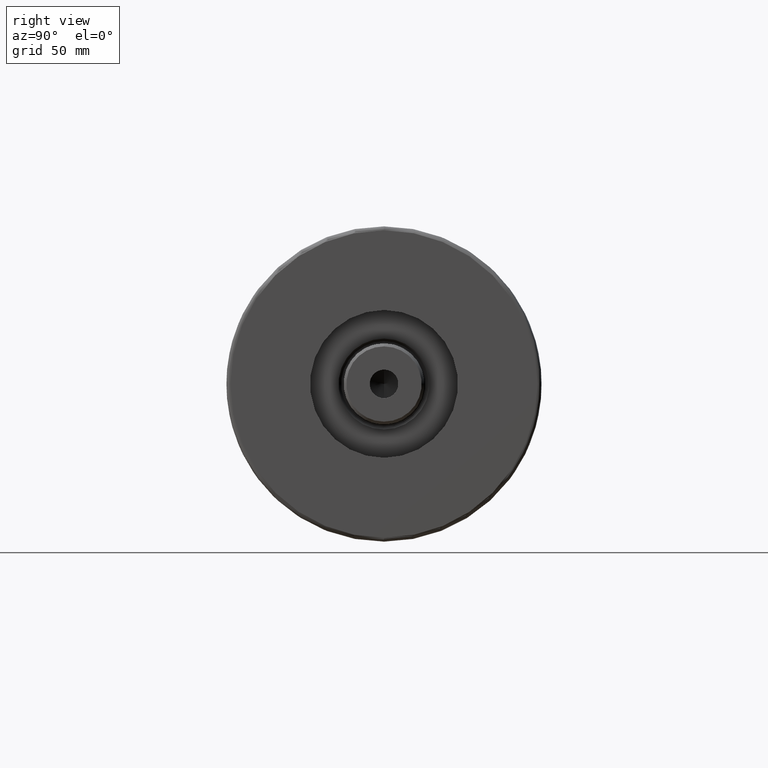
[diagram: clean part render]
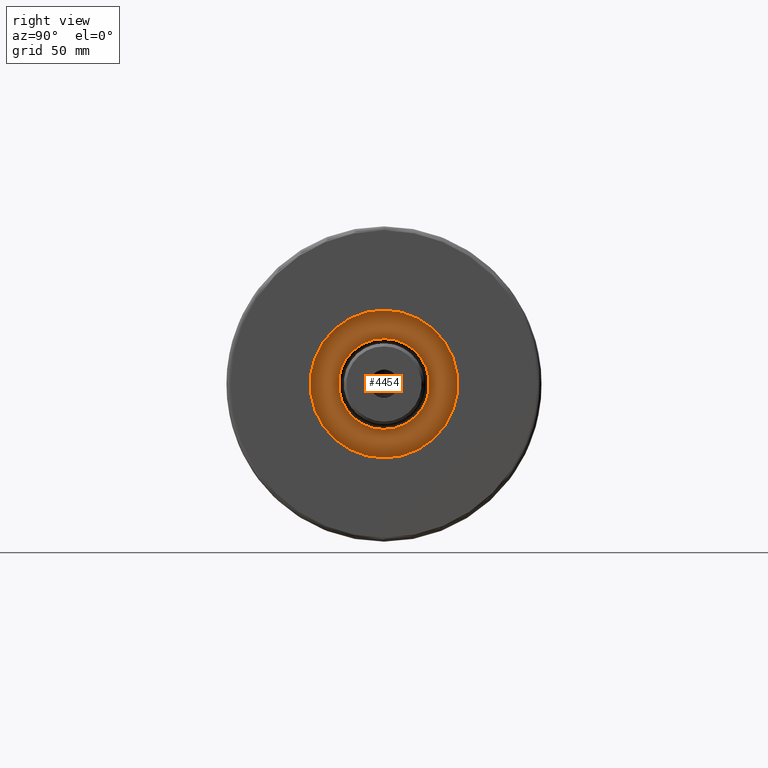
[diagram: same view with one face highlighted and labeled with its STEP entity id]
A machine part, right view. The second image highlights one B-rep face of the part: STEP entity #4454.
In plain terms, the highlighted planar face has unit normal (1, 0, -0).
Its self-contained STEP definition (entity closure, byte-faithful):
#40 = EDGE_CURVE ( 'NONE', #542, #2072, #178, .T. ) ;
#140 = CARTESIAN_POINT ( 'NONE',  ( 0.000000000000000000, 0.000000000000000000, 59.89999999999999147 ) ) ;
#178 = CIRCLE ( 'NONE', #894, 37.50000000000000711 ) ;
#274 = DIRECTION ( 'NONE',  ( -0.000000000000000000, -0.000000000000000000, -1.000000000000000000 ) ) ;
#310 = FACE_BOUND ( 'NONE', #425, .T. ) ;
#425 = EDGE_LOOP ( 'NONE', ( #1106, #554 ) ) ;
#542 = VERTEX_POINT ( 'NONE', #1857 ) ;
#554 = ORIENTED_EDGE ( 'NONE', *, *, #968, .T. ) ;
#862 = ORIENTED_EDGE ( 'NONE', *, *, #40, .T. ) ;
#894 = AXIS2_PLACEMENT_3D ( 'NONE', #140, #4322, #1696 ) ;
#968 = EDGE_CURVE ( 'NONE', #2165, #4409, #3863, .T. ) ;
#975 = EDGE_CURVE ( 'NONE', #2072, #542, #4566, .T. ) ;
#1026 = DIRECTION ( 'NONE',  ( 0.000000000000000000, 0.000000000000000000, 1.000000000000000000 ) ) ;
#1056 = DIRECTION ( 'NONE',  ( -0.000000000000000000, -0.000000000000000000, -1.000000000000000000 ) ) ;
#1106 = ORIENTED_EDGE ( 'NONE', *, *, #1904, .T. ) ;
#1116 = CARTESIAN_POINT ( 'NONE',  ( 0.000000000000000000, 0.000000000000000000, 59.89999999999999147 ) ) ;
#1227 = CARTESIAN_POINT ( 'NONE',  ( -23.05000000000002913, 2.822810872034651791E-15, 59.89999999999999147 ) ) ;
#1301 = AXIS2_PLACEMENT_3D ( 'NONE', #1116, #1026, #1468 ) ;
#1358 = CARTESIAN_POINT ( 'NONE',  ( 0.000000000000000000, 0.000000000000000000, 59.89999999999999147 ) ) ;
#1382 = DIRECTION ( 'NONE',  ( 1.000000000000000000, 0.000000000000000000, 0.000000000000000000 ) ) ;
#1407 = CARTESIAN_POINT ( 'NONE',  ( 23.05000000000002913, 0.000000000000000000, 59.89999999999999147 ) ) ;
#1468 = DIRECTION ( 'NONE',  ( 1.000000000000000000, 0.000000000000000000, 0.000000000000000000 ) ) ;
#1504 = DIRECTION ( 'NONE',  ( 1.000000000000000000, 0.000000000000000000, 0.000000000000000000 ) ) ;
#1696 = DIRECTION ( 'NONE',  ( 1.000000000000000000, 0.000000000000000000, 0.000000000000000000 ) ) ;
#1702 = ORIENTED_EDGE ( 'NONE', *, *, #975, .T. ) ;
#1836 = CARTESIAN_POINT ( 'NONE',  ( 0.000000000000000000, 0.000000000000000000, 59.89999999999999147 ) ) ;
#1857 = CARTESIAN_POINT ( 'NONE',  ( 37.50000000000000711, 4.592425496802575156E-15, 59.89999999999999147 ) ) ;
#1904 = EDGE_CURVE ( 'NONE', #4409, #2165, #3467, .T. ) ;
#1942 = CARTESIAN_POINT ( 'NONE',  ( -37.50000000000000711, 0.000000000000000000, 59.89999999999999147 ) ) ;
#2072 = VERTEX_POINT ( 'NONE', #1942 ) ;
#2165 = VERTEX_POINT ( 'NONE', #1227 ) ;
#2233 = PLANE ( 'NONE',  #3806 ) ;
#2585 = AXIS2_PLACEMENT_3D ( 'NONE', #4910, #274, #1504 ) ;
#2602 = EDGE_LOOP ( 'NONE', ( #1702, #862 ) ) ;
#2971 = DIRECTION ( 'NONE',  ( 1.000000000000000000, 0.000000000000000000, -0.000000000000000000 ) ) ;
#3145 = AXIS2_PLACEMENT_3D ( 'NONE', #1358, #1056, #1382 ) ;
#3467 = CIRCLE ( 'NONE', #3145, 23.05000000000002913 ) ;
#3806 = AXIS2_PLACEMENT_3D ( 'NONE', #1836, #4864, #2971 ) ;
#3863 = CIRCLE ( 'NONE', #2585, 23.05000000000002913 ) ;
#4110 = FACE_OUTER_BOUND ( 'NONE', #2602, .T. ) ;
#4322 = DIRECTION ( 'NONE',  ( 0.000000000000000000, 0.000000000000000000, 1.000000000000000000 ) ) ;
#4409 = VERTEX_POINT ( 'NONE', #1407 ) ;
#4454 = ADVANCED_FACE ( 'NONE', ( #310, #4110 ), #2233, .T. ) ;
#4566 = CIRCLE ( 'NONE', #1301, 37.50000000000000711 ) ;
#4864 = DIRECTION ( 'NONE',  ( 0.000000000000000000, 0.000000000000000000, 1.000000000000000000 ) ) ;
#4910 = CARTESIAN_POINT ( 'NONE',  ( 0.000000000000000000, 0.000000000000000000, 59.89999999999999147 ) ) ;